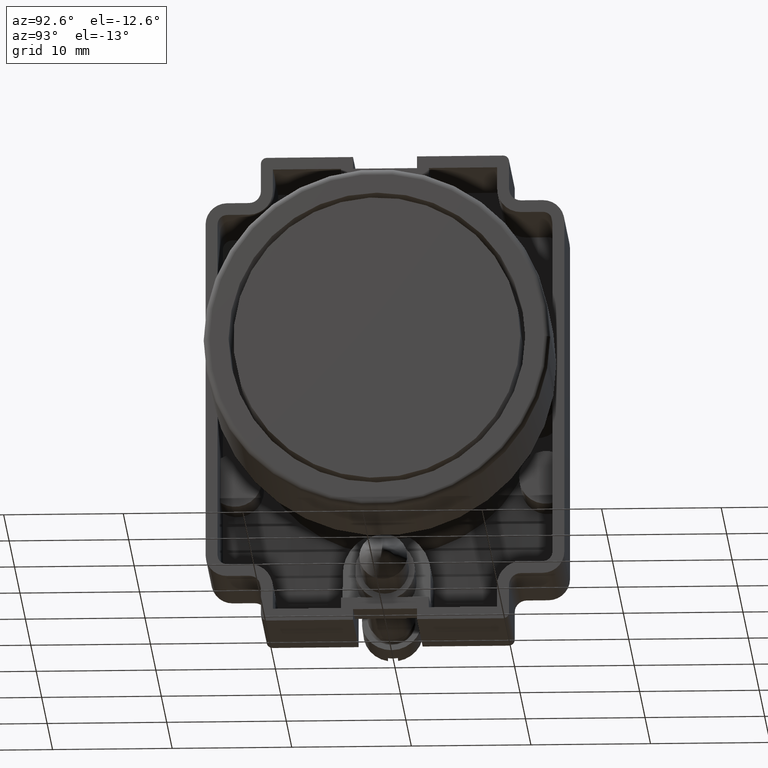
[diagram: clean part render]
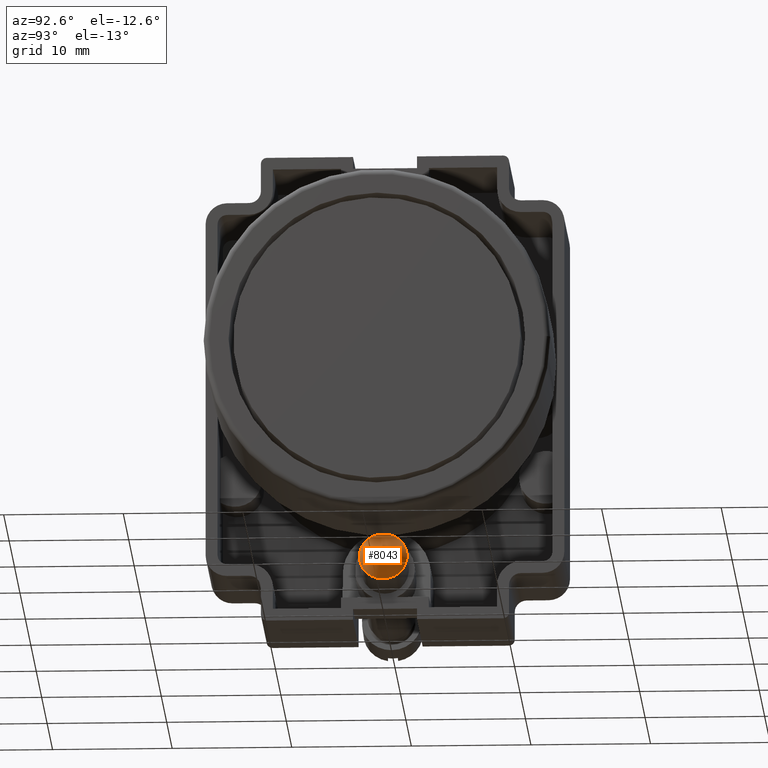
[diagram: same view with one face highlighted and labeled with its STEP entity id]
A machine part, auxiliary view. The second image highlights one B-rep face of the part: STEP entity #8043.
In plain terms, the highlighted conical surface has half-angle 45 deg.
Its self-contained STEP definition (entity closure, byte-faithful):
#8020=CARTESIAN_POINT('',(-2.000000000000000,0.0,-15.999999999999998));
#8021=VERTEX_POINT('',#8020);
#8022=CARTESIAN_POINT('',(0.0,0.0,-15.999999999999998));
#8023=DIRECTION('',(0.0,0.0,-1.0));
#8024=DIRECTION('',(-1.0,0.0,0.0));
#8025=AXIS2_PLACEMENT_3D('',#8022,#8023,#8024);
#8026=CIRCLE('',#8025,2.000000000000000);
#8027=EDGE_CURVE('',#8021,#8021,#8026,.T.);
#8035=CARTESIAN_POINT('',(0.0,0.0,-16.999999999999996));
#8036=DIRECTION('',(0.0,0.0,1.0));
#8037=DIRECTION('',(-1.0,0.0,0.0));
#8038=AXIS2_PLACEMENT_3D('',#8035,#8036,#8037);
#8039=CONICAL_SURFACE('',#8038,1.000000000000000,44.999999999999964);
#8040=ORIENTED_EDGE('',*,*,#8027,.T.);
#8041=EDGE_LOOP('',(#8040));
#8042=FACE_OUTER_BOUND('',#8041,.T.);
#8043=ADVANCED_FACE('',(#8042),#8039,.T.);